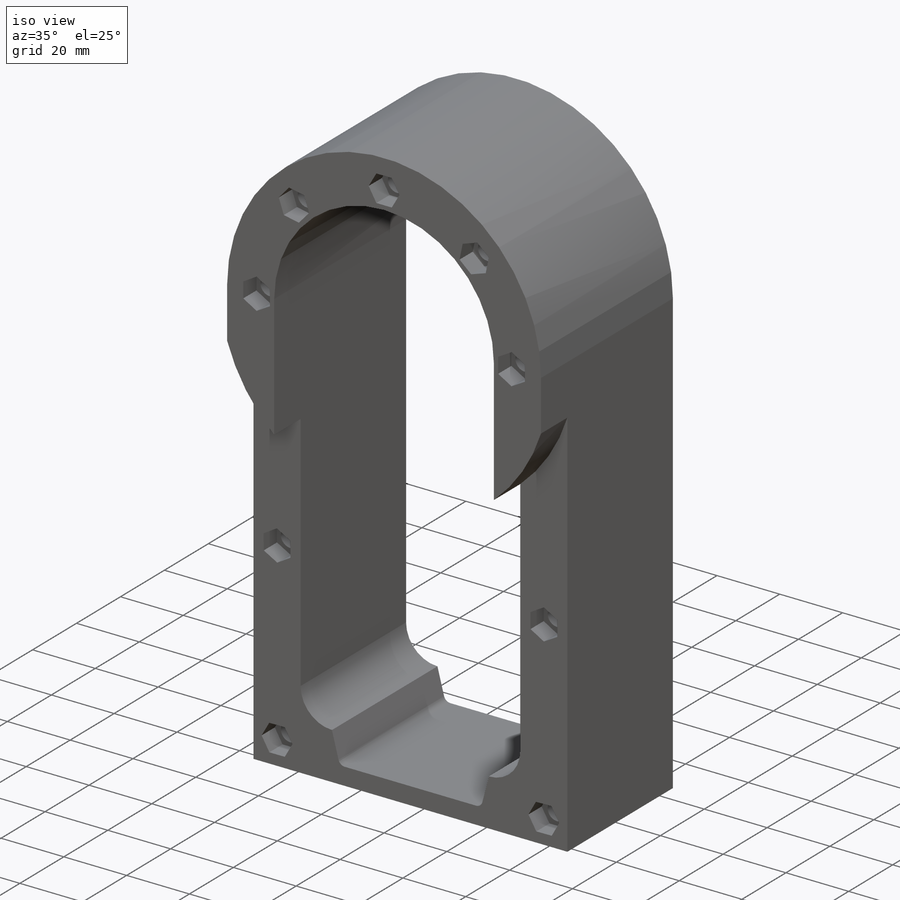
[diagram: iso view]
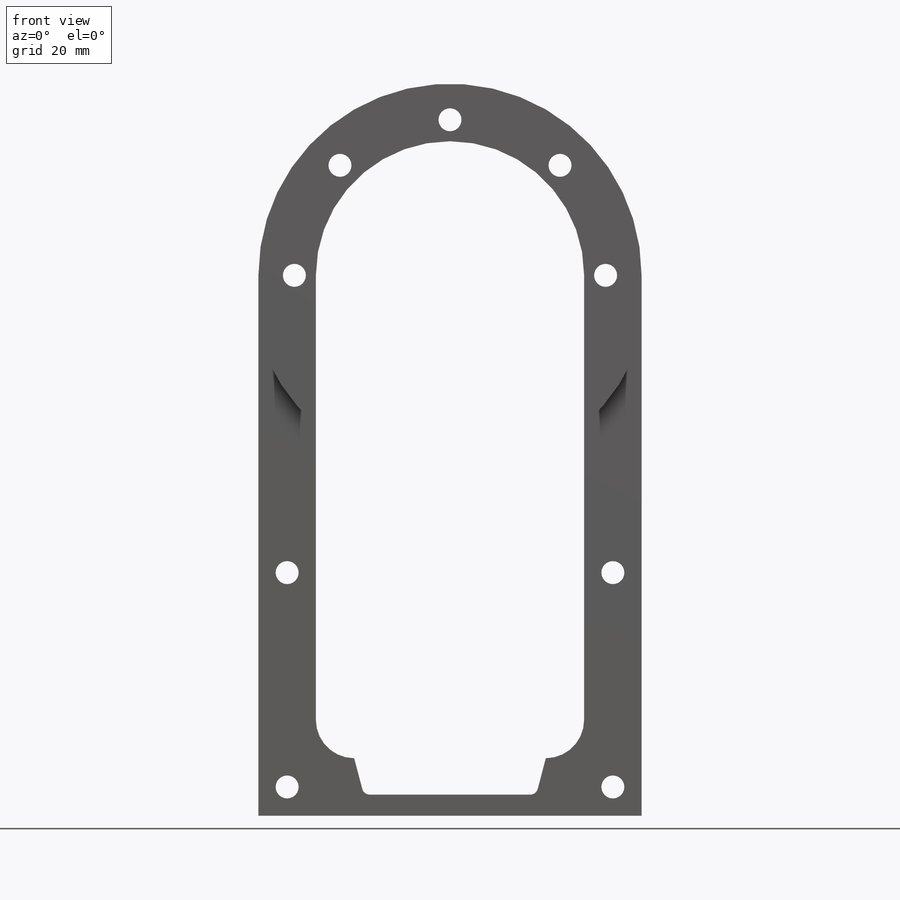
[diagram: front view]
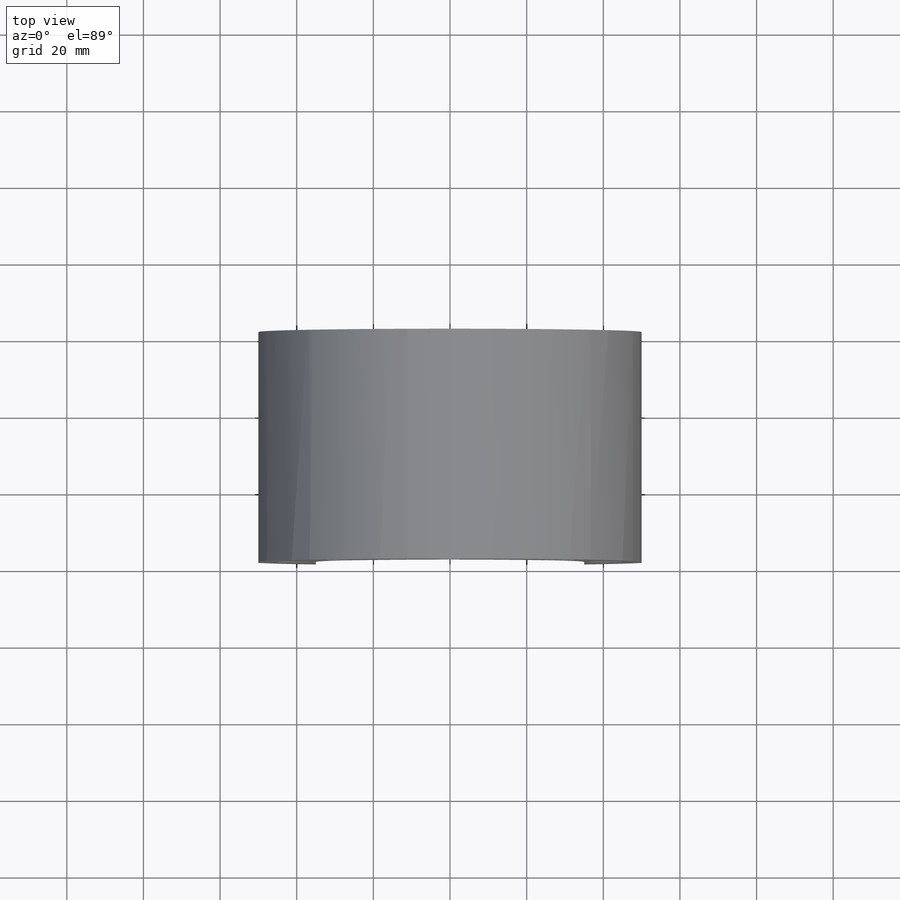
[diagram: top view]
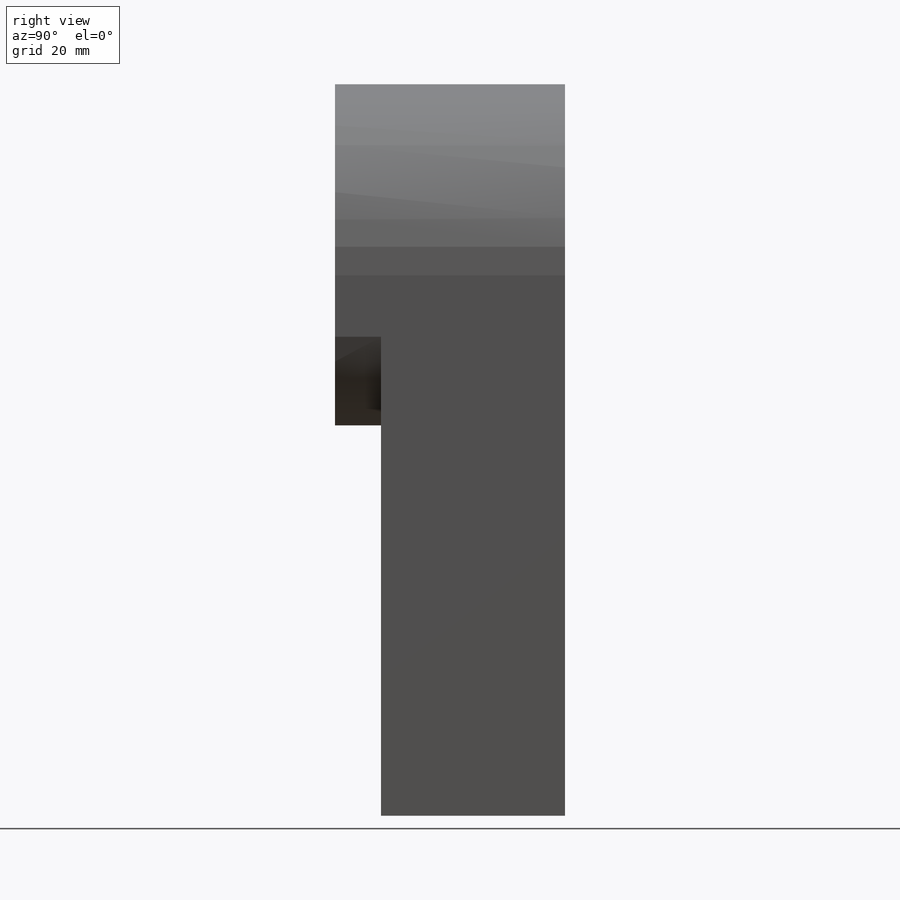
[diagram: right view]
SOLIDWORKS PART (.sldprt)
format: sldprt  version: not decoded by parser v0  size: 421,376 bytes
history: native  units: mm
features: sketch x8, cut_extrude x7, plane x3, material x1, extrude x1 (+9 scaffold rows collapsed)
feature tree (29):
  scaffold x9  (default folders/planes/origin — collapsed)
  material  "Material <sin especificar>"
  plane  "Alzado"
  plane  "Planta"
  plane  "Vista lateral"
  sketch  "Croquis1"  dims[c1.D1=100.0mm c1.D2=50.0mm c1.D3=10.0mm c2.D2=113.0mm c2.D1=141.0mm c3.D2=15.0mm]
  extrude  "Saliente-Extruir1"  Depth=60mm
  sketch  "Croquis2"  dims[D1=81.21mm D2=6.0mm D3=8.0]
  cut_extrude  "Cortar-Extruir1"  Depth=60mm
  sketch  "Croquis3"  dims[D1=8.5mm D2=8.5mm D3=8.5mm D4=8.5mm D5=8.5mm]
  cut_extrude  "Cortar-Extruir2"  Depth=6mm
  sketch  "Croquis4"  dims[D1=105.0mm]
  cut_extrude  "Cortar-Extruir3"  Depth=12mm
  sketch  "Croquis5"  dims[D1=6.0mm]
  cut_extrude  "Cortar-Extruir4"  [1 undecoded]
  sketch  "Croquis6"  dims[D1=8.5mm D2=~4.907477mm]
  cut_extrude  "Cortar-Extruir5"  Depth=6mm
  sketch  "Croquis7"  dims[D1=8.5mm D2=8.5mm]
  cut_extrude  "Cortar-Extruir6"  Depth=6mm
  sketch  "Croquis8"  dims[c1.D2=2.0mm c1.D1=28.0mm c2.D2=113.0mm c2.D3=31.0mm c2.D4=31.0mm c2.D5=45.0mm c2.D6=45.0mm]
  cut_extrude  "Cortar-Extruir7"  [1 undecoded]
decode coverage: 14 of 16 modeling features carry decoded parameters
note: ~ marks probable driven/reference dimensions
note: 2 parameter values undecoded
note: suppression state not decoded; provenance and decode notes live in map.json
